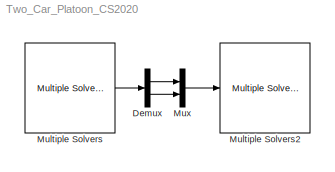
MODEL Two_Car_Platoon_CS2020
KIND model
BLOCK [Demux] Demux
  DisplayOption = bar
  Outputs = 2
  Ports = [1, 2]
  SID = 61
BLOCK [Reference] Multiple Solvers  REF=Solver_SF/Multiple Solvers
  Ports = [0, 1]
  Priority = 1
  Run_RTs = off
  SID = 69
  SIMFILE = <path>
  SourceBlock = Solver_SF/Multiple Solvers
  SourceType = Vehicle math model library
  StopMode_ind = Vehicle Model
  iVehicle = 1
  vs_scx = on
  vs_state_ind = Run
BLOCK [Reference] Multiple Solvers2  REF=Solver_SF/Multiple Solvers
  Ports = [1, 1]
  Priority = 1
  Run_RTs = off
  SID = 72
  SIMFILE = <path>
  SourceBlock = Solver_SF/Multiple Solvers
  SourceType = Vehicle math model library
  StopMode_ind = Vehicle Model
  iVehicle = 2
  vs_scx = on
  vs_state_ind = Run
BLOCK [Mux] Mux
  DisplayOption = bar
  Inputs = 2
  Ports = [2, 1]
  SID = 62
LINE Demux:1 -> Mux:1
LINE Demux:2 -> Mux:2
LINE Multiple Solvers:1 -> Demux:1
LINE Mux:1 -> Multiple Solvers2:1
note: 2 file-system paths scrubbed to <path> (not preserved elsewhere — flat text is the only slx artifact)
